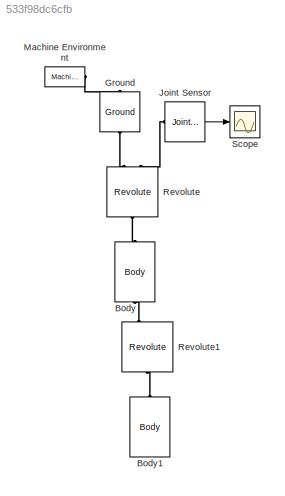
MODEL slx_533f98dc6cfb
KIND model
CONFIG InitFcn = m = 1;\nl = 10;
BLOCK [Reference] Body  REF=mblibv1/Bodies/Body
  AttachedToCS = CG
  BodyColor = [0.5 0.5 0.5]
  BodyColorSelMode = MACHINE_DEFAULT
  CG = Left$CG$[0 -l 0]$CS1$CS1$m$[0 0 0]$Euler X-Y-Z$deg$CS1$false$none
  CGPos = [0 -l 0]
  CGRot = [0 0 0]
  CS0Pos = []
  CS0Rot = []
  CS10Pos = []
  CS10Rot = []
  CS11Pos = []
  CS11Rot = []
  CS12Pos = []
  CS12Rot = []
  CS13Pos = []
  CS13Rot = []
  CS14Pos = []
  CS14Rot = []
  CS15Pos = []
  CS15Rot = []
  CS16Pos = []
  CS16Rot = []
  CS17Pos = []
  CS17Rot = []
  CS18Pos = []
  CS18Rot = []
  CS19Pos = []
  CS19Rot = []
  CS1Pos = [0 0 0]
  CS1Rot = [0 0 30]
  CS20Pos = []
  CS20Rot = []
  CS2Pos = [0 -l 0]
  CS2Rot = [0 0 0]
  CS3Pos = []
  CS3Rot = []
  CS4Pos = []
  CS4Rot = []
  CS5Pos = []
  CS5Rot = []
  CS6Pos = []
  CS6Rot = []
  CS7Pos = []
  CS7Rot = []
  CS8Pos = []
  CS8Rot = []
  CS9Pos = []
  CS9Rot = []
  ClassName = Body
  Density = 1
  DensityUnits = kg/m^3
  DensityUse = false
  DialogClass = MechanicalBodyBlock
  GraphicsMode = MACHINE_DEFAULT
  Inertia = eye(3)
  InertiaUnits = kg*m^2
  LConnTagsString = CS1
  Mass = m
  MassUnits = kg
  Ports = [0, 0, 0, 0, 0, 1, 1]
  RConnTagsString = CS2
  Shape = Cylinder
  ShapeDims = [1 1]
  ShapeUnits = m
  ShapeUse = false
  SourceBlock = mblibv1/Bodies/Body
  SourceType = Body
  UpdateFromCAD = off
  WorkingFrames = Left$CS1$[0 0 0]$ADJOINING$ADJOINING$m$[0 0 30]$Euler X-Y-Z$deg$ADJOINING$true$none#Right$CS2$[0 -l 0]$CS1$CS1$m$[0 0 0]$Euler X-Y-Z$deg$CS1$true$none
BLOCK [Reference] Body1  REF=mblibv1/Bodies/Body
  AttachedToCS = 1
  BodyColor = [0.5 0.5 0.5]
  BodyColorSelMode = MACHINE_DEFAULT
  CG = Left$CG$[0 -l 0]$CS1$CS1$m$[0 0 0]$Euler X-Y-Z$deg$CS1$false$none
  CGPos = [0 -l 0]
  CGRot = [0 0 0]
  CS0Pos = []
  CS0Rot = []
  CS10Pos = []
  CS10Rot = []
  CS11Pos = []
  CS11Rot = []
  CS12Pos = []
  CS12Rot = []
  CS13Pos = []
  CS13Rot = []
  CS14Pos = []
  CS14Rot = []
  CS15Pos = []
  CS15Rot = []
  CS16Pos = []
  CS16Rot = []
  CS17Pos = []
  CS17Rot = []
  CS18Pos = []
  CS18Rot = []
  CS19Pos = []
  CS19Rot = []
  CS1Pos = [0 0 0]
  CS1Rot = [0 0 30]
  CS20Pos = []
  CS20Rot = []
  CS2Pos = [0 -l 0]
  CS2Rot = [0 0 0]
  CS3Pos = []
  CS3Rot = []
  CS4Pos = []
  CS4Rot = []
  CS5Pos = []
  CS5Rot = []
  CS6Pos = []
  CS6Rot = []
  CS7Pos = []
  CS7Rot = []
  CS8Pos = []
  CS8Rot = []
  CS9Pos = []
  CS9Rot = []
  ClassName = Body
  Density = 1
  DensityUnits = kg/m^3
  DensityUse = false
  DialogClass = MechanicalBodyBlock
  GraphicsMode = 1
  Inertia = eye(3)
  InertiaUnits = kg*m^2
  LConnTagsString = CS1
  Mass = m
  MassUnits = kg
  Ports = [0, 0, 0, 0, 0, 1, 1]
  RConnTagsString = CS2
  Shape = Cylinder
  ShapeDims = [1 1]
  ShapeUnits = m
  ShapeUse = false
  SourceBlock = mblibv1/Bodies/Body
  SourceType = Body
  UpdateFromCAD = off
  WorkingFrames = Left$CS1$[0 0 0]$ADJOINING$ADJOINING$m$[0 0 30]$Euler X-Y-Z$deg$ADJOINING$true$none#Right$CS2$[0 -l 0]$CS1$CS1$m$[0 0 0]$Euler X-Y-Z$deg$CS1$true$none
BLOCK [Reference] Ground  REF=mblibv1/Bodies/Ground
  ClassName = Ground
  CoordPosition = [0 0 0]
  CoordPositionUnits = m
  DialogClass = GroundBlock
  LeftPortType = env
  MachineId = [5 0]
  PhysicalDomain = Mechanical
  Ports = [0, 0, 0, 0, 0, 1, 1]
  RightPortType = workingframe
  ShowEnvPort = on
  SourceBlock = mblibv1/Bodies/Ground
  SourceType = Ground
  StateVectorMgrId = 4
  UpdateFromCAD = off
  UserDataPersistent = on
BLOCK [Reference] Joint Sensor  REF=mblibv1/Sensors & 
Actuators/Joint Sensor
  Acceleration = off
  AccelerationUnits = m/s^2
  ActiveIO = on
  Angle = on
  AngleUnits = deg
  ArcAcceleration = off
  ArcAccelerationUnits = deg/s^2
  ArcVelocity = off
  ArcVelocityUnits = deg/s
  ClassName = JointSensor
  CoordPosition = on
  CoordPositionUnits = m
  DialogClass = MechanicalSensorBlock
  Force = off
  ForceUnits = N
  Muxed = off
  OutputVector = [ 1 ]
  PhysicalDomain = Mechanical
  PortType = blob
  Ports = [0, 1, 0, 0, 0, 1]
  Pose = off
  Primitive = R1
  Quaternion = on
  QuaternionDDT = off
  QuaternionDT = off
  QuaternionUnits = off
  ReactionForce = off
  ReactionForceUnits = N
  ReactionMoment = off
  ReactionMomentUnits = N-m
  ReactionReferenceFrame = Absolute (World)
  ReactionSensedSide = Base
  ReferenceFrame = Absolute (INERTIAL)
  SourceBlock = mblibv1/Sensors & \nActuators/Joint Sensor
  SourceType = Joint Sensor
  Torque = off
  TorqueUnits = N-m
  UpdateFromCAD = off
  Velocity = off
  VelocityUnits = m/s
  Width = 1
BLOCK [Reference] Machine Environment  REF=mblibv1/Bodies/Machine
Environment
  AnalysisType = Forward dynamics
  AngularAssemblyTolerance = 1e-3
  AngularAssemblyToleranceUnits = rad
  BodyColorSelMode = Use model default
  BodyVisualizationType = Use model default body geometries
  ClassName = Environment
  ConstraintAbsTolerance = 1e-4
  ConstraintRelTolerance = 1e-4
  ConstraintSolverType = Stabilizing
  DefaultBodyColor = [1 0 0]
  DialogTemplateClass = MECH.MachineEnvironment
  Dimensionality = Auto-detect
  Gravity = [0 -9.81 0]
  GravityAsSignal = off
  GravityUnits = m/s^2
  LinearAssemblyTolerance = 1e-3
  LinearAssemblyToleranceUnits = m
  PerturbationSize = 1e-5
  PhysicalDomain = Mechanical
  PortType = env
  Ports = [0, 0, 0, 0, 0, 0, 1]
  RedundancyAnalysisTolerance = 1e-14
  RedundancyAnalysisToleranceType = Automatically select tolerance
  SourceBlock = mblibv1/Bodies/Machine\nEnvironment
  SourceType = Machine Environment
  StatePerturbationType = Fixed
  SyncWhenCopied = off
  Tag = Factory ground
  UseRobustSingularityHandling = off
  VisualizeMachine = on
BLOCK [Reference] Revolute  REF=mblibv1/Joints/Revolute
  ClassName = Joint
  CutJoint = off
  DialogClass = JointBlock
  LConnTagsString = __newl0|SA1
  MarkAsCut = off
  NumSAPorts = 1
  Ports = [0, 0, 0, 0, 0, 2, 1]
  PrimitiveProps = R1$WORLD$[0 0 1]$revolute
  Primitives = revolute
  R1Axis = [0 0 1]
  RConnTagsString = __newr0
  SourceBlock = mblibv1/Joints/Revolute
  SourceType = Revolute
  UpdateFromCAD = off
BLOCK [Reference] Revolute1  REF=mblibv1/Joints/Revolute
  ClassName = Joint
  CutJoint = off
  DialogClass = JointBlock
  LConnTagsString = __newl0|SA1
  MarkAsCut = off
  NumSAPorts = 1
  Ports = [0, 0, 0, 0, 0, 2, 1]
  PrimitiveProps = R1$WORLD$[0 0 1]$revolute
  Primitives = revolute
  R1Axis = [0 0 1]
  RConnTagsString = __newr0
  SourceBlock = mblibv1/Joints/Revolute
  SourceType = Revolute
  UpdateFromCAD = off
BLOCK [Scope] Scope
  DataFormat = StructureWithTime
  Floating = off
  NumInputPorts = 1
  Ports = [1]
  SampleTime = 0
  ShowLegends = off
  YMax = 0
  YMin = -60
LINE Joint Sensor:1 -> Scope:1
PLINE Body1:LConn1 -- Revolute1:RConn1
PLINE Body:LConn1 -- Revolute:RConn1
PLINE Body:RConn1 -- Revolute1:LConn1
PLINE Ground:LConn1 -- Machine Environment:RConn1
PLINE Ground:RConn1 -- Revolute:LConn1
PLINE Joint Sensor:LConn1 -- Revolute:LConn2
